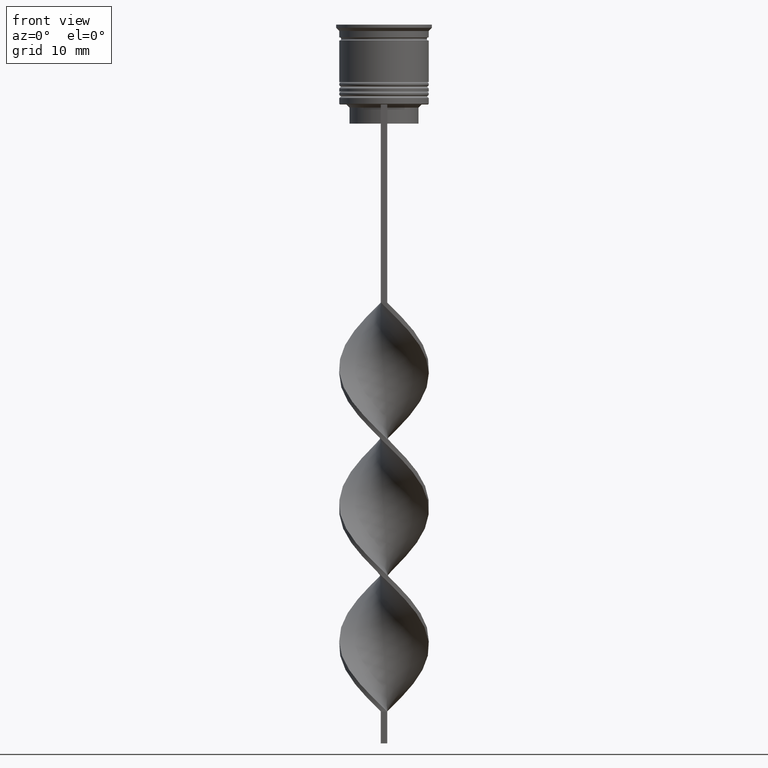
[diagram: clean part render]
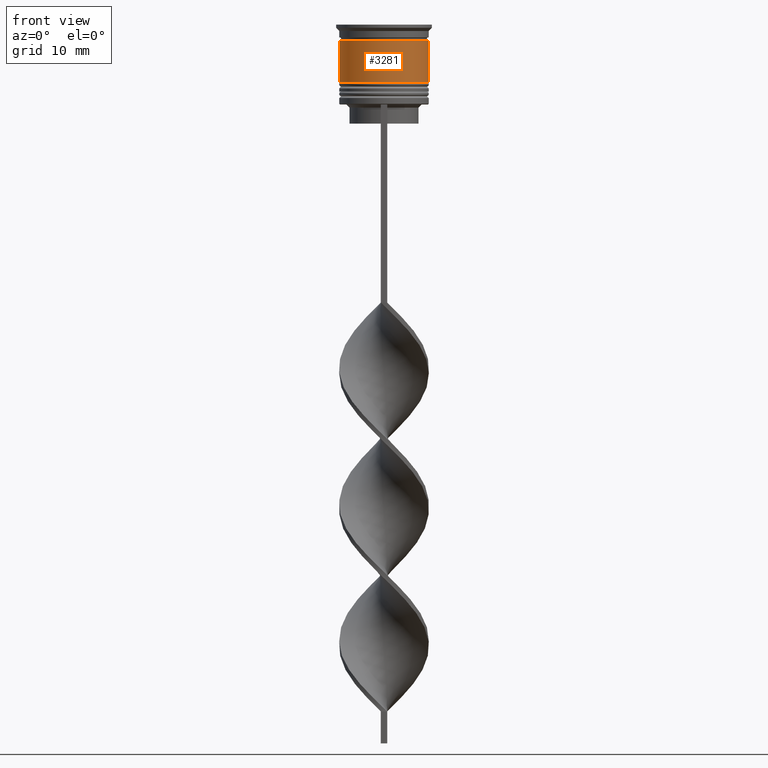
[diagram: same view with one face highlighted and labeled with its STEP entity id]
A machine part, front view. The second image highlights one B-rep face of the part: STEP entity #3281.
In plain terms, the highlighted cylindrical surface (partial cylindrical patch) has radius 7 mm, axis along (-0, -0, 1).
Its self-contained STEP definition (entity closure, byte-faithful):
#17 = CARTESIAN_POINT ( 'NONE',  ( 7.000000000000000888, 0.000000000000000000, -9.000000000000001776 ) ) ;
#69 = DIRECTION ( 'NONE',  ( 1.000000000000000000, 0.000000000000000000, 0.000000000000000000 ) ) ;
#83 = LINE ( 'NONE', #2594, #390 ) ;
#163 = AXIS2_PLACEMENT_3D ( 'NONE', #581, #608, #69 ) ;
#189 = ORIENTED_EDGE ( 'NONE', *, *, #3014, .F. ) ;
#346 = EDGE_CURVE ( 'NONE', #2859, #3090, #1498, .T. ) ;
#390 = VECTOR ( 'NONE', #1484, 1000.000000000000000 ) ;
#402 = ORIENTED_EDGE ( 'NONE', *, *, #2687, .T. ) ;
#564 = DIRECTION ( 'NONE',  ( -0.000000000000000000, -0.000000000000000000, 1.000000000000000000 ) ) ;
#581 = CARTESIAN_POINT ( 'NONE',  ( 0.000000000000000000, 0.000000000000000000, 0.000000000000000000 ) ) ;
#608 = DIRECTION ( 'NONE',  ( -0.000000000000000000, -0.000000000000000000, 1.000000000000000000 ) ) ;
#867 = CIRCLE ( 'NONE', #1749, 7.000000000000000888 ) ;
#1010 = VERTEX_POINT ( 'NONE', #1056 ) ;
#1056 = CARTESIAN_POINT ( 'NONE',  ( 6.999999999999997335, 0.000000000000000000, -2.500000000000000444 ) ) ;
#1274 = AXIS2_PLACEMENT_3D ( 'NONE', #2044, #564, #3099 ) ;
#1484 = DIRECTION ( 'NONE',  ( -0.000000000000000000, -0.000000000000000000, 1.000000000000000000 ) ) ;
#1498 = LINE ( 'NONE', #1761, #2545 ) ;
#1576 = CARTESIAN_POINT ( 'NONE',  ( 0.000000000000000000, 0.000000000000000000, -9.000000000000001776 ) ) ;
#1731 = CYLINDRICAL_SURFACE ( 'NONE', #163, 6.999999999999999112 ) ;
#1749 = AXIS2_PLACEMENT_3D ( 'NONE', #1576, #2919, #3249 ) ;
#1761 = CARTESIAN_POINT ( 'NONE',  ( -6.999999999999999112, 8.572527594031472204E-16, 0.000000000000000000 ) ) ;
#2006 = FACE_OUTER_BOUND ( 'NONE', #2572, .T. ) ;
#2044 = CARTESIAN_POINT ( 'NONE',  ( 0.000000000000000000, 0.000000000000000000, -2.500000000000000444 ) ) ;
#2267 = VERTEX_POINT ( 'NONE', #17 ) ;
#2280 = ORIENTED_EDGE ( 'NONE', *, *, #2421, .T. ) ;
#2421 = EDGE_CURVE ( 'NONE', #2267, #1010, #83, .T. ) ;
#2469 = CARTESIAN_POINT ( 'NONE',  ( -7.000000000000000888, 8.572527594031474176E-16, -9.000000000000001776 ) ) ;
#2545 = VECTOR ( 'NONE', #3427, 1000.000000000000000 ) ;
#2572 = EDGE_LOOP ( 'NONE', ( #3558, #402, #2280, #189 ) ) ;
#2594 = CARTESIAN_POINT ( 'NONE',  ( 6.999999999999999112, 0.000000000000000000, 0.000000000000000000 ) ) ;
#2687 = EDGE_CURVE ( 'NONE', #2859, #2267, #867, .T. ) ;
#2842 = CIRCLE ( 'NONE', #1274, 6.999999999999997335 ) ;
#2859 = VERTEX_POINT ( 'NONE', #2469 ) ;
#2919 = DIRECTION ( 'NONE',  ( -0.000000000000000000, -0.000000000000000000, 1.000000000000000000 ) ) ;
#3000 = CARTESIAN_POINT ( 'NONE',  ( -6.999999999999997335, 8.572527594031471218E-16, -2.500000000000000444 ) ) ;
#3014 = EDGE_CURVE ( 'NONE', #3090, #1010, #2842, .T. ) ;
#3090 = VERTEX_POINT ( 'NONE', #3000 ) ;
#3099 = DIRECTION ( 'NONE',  ( 1.000000000000000000, 0.000000000000000000, 0.000000000000000000 ) ) ;
#3249 = DIRECTION ( 'NONE',  ( 1.000000000000000000, 0.000000000000000000, 0.000000000000000000 ) ) ;
#3281 = ADVANCED_FACE ( 'NONE', ( #2006 ), #1731, .T. ) ;
#3427 = DIRECTION ( 'NONE',  ( -0.000000000000000000, -0.000000000000000000, 1.000000000000000000 ) ) ;
#3558 = ORIENTED_EDGE ( 'NONE', *, *, #346, .F. ) ;